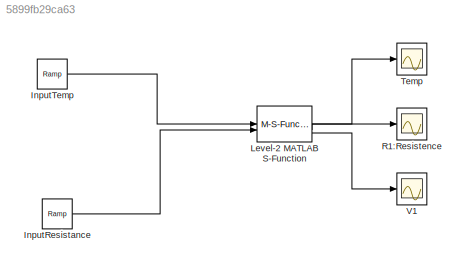
MODEL slx_5899fb29ca63
KIND model
CONFIG AbsTol = auto
CONFIG EnableMultiTasking = off
CONFIG FixedStep = auto
CONFIG MaxStep = 1e-4
CONFIG MinStep = auto
CONFIG RelTol = 1e-3
CONFIG SampleTimeConstraint = Unconstrained
CONFIG SolverName = ode45
CONFIG StartTime = 0.0
CONFIG StopTime = 7e-2
BLOCK [Reference] InputResistance  REF=simulink/Sources/Ramp
  SourceBlock = simulink/Sources/Ramp
  SourceType = Ramp
BLOCK [Reference] InputTemp  REF=simulink/Sources/Ramp
  SourceBlock = simulink/Sources/Ramp
  SourceType = Ramp
BLOCK [M-S-Function] Level-2 MATLAB S-Function
  FunctionName = XyceSFunctionImp
  Parameters = XyceInputFileName,WorkingDirectory,NumberOfInputs,NumberOfOutputs,InputNames,OutputNames
BLOCK [Scope] R1:Resistence
  Floating = off
  NumInputPorts = 1
  ScopeSpecificationString = Simulink.scopes.TimeScopeBlockCfg('CurrentConfiguration', extmgr.ConfigurationSet(extmgr.Configuration('Core','General UI',true),extmgr.Configuration('Core','Source UI',true),extmgr.Configuration('Sources','WiredSimulink',true,'DataLoggingVariableName','ScopeData1'),extmgr.Configuration('Visuals','Time Domain',true,'SerializedDisplays',{struct('MinYLimReal','95.625','MaxYLimReal','139.375','YLabel...<+1434ch>
BLOCK [Scope] Temp
  Floating = off
  NumInputPorts = 1
  ScopeSpecificationString = Simulink.scopes.TimeScopeBlockCfg('CurrentConfiguration', extmgr.ConfigurationSet(extmgr.Configuration('Core','General UI',true),extmgr.Configuration('Core','Source UI',true),extmgr.Configuration('Sources','WiredSimulink',true),extmgr.Configuration('Visuals','Time Domain',true,'SerializedDisplays',{struct('MinYLimReal','16.11875','MaxYLimReal','20.43125','YLabelReal','','MinYLimMag','16.11875','Ma...<+1408ch>
BLOCK [Scope] V1
  Floating = off
  NumInputPorts = 1
  ScopeSpecificationString = Simulink.scopes.TimeScopeBlockCfg('CurrentConfiguration', extmgr.ConfigurationSet(extmgr.Configuration('Core','General UI',true),extmgr.Configuration('Core','Source UI',true),extmgr.Configuration('Sources','WiredSimulink',true,'DataLoggingVariableName','ScopeData2'),extmgr.Configuration('Visuals','Time Domain',true,'SerializedDisplays',{struct('MinYLimReal','-0.05322','MaxYLimReal','0.479','YLabel...<+1452ch>
LINE InputResistance:1 -> Level-2 MATLAB S-Function:2
LINE InputTemp:1 -> Level-2 MATLAB S-Function:1
LINE Level-2 MATLAB S-Function:1 -> Temp:1
LINE Level-2 MATLAB S-Function:2 -> R1:Resistence:1
LINE Level-2 MATLAB S-Function:3 -> V1:1
